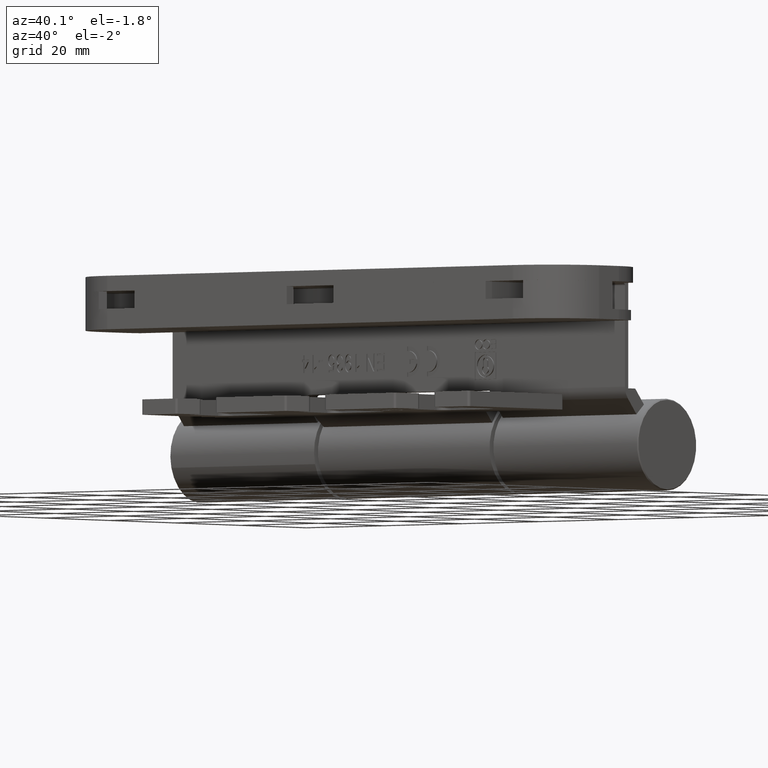
[diagram: clean part render]
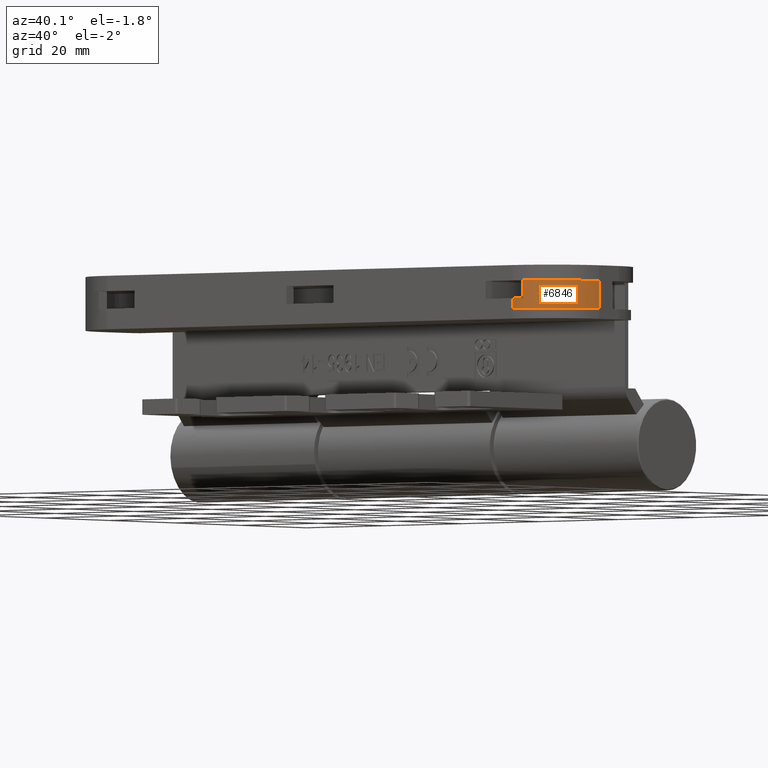
[diagram: same view with one face highlighted and labeled with its STEP entity id]
A machine part, auxiliary view. The second image highlights one B-rep face of the part: STEP entity #6846.
In plain terms, the highlighted cylindrical surface (partial cylindrical patch) has radius 12 mm, axis along (-0, -0, 1).
Its self-contained STEP definition (entity closure, byte-faithful):
#32 = CIRCLE ( 'NONE', #365, 12.00000000000001066 ) ;
#258 = DIRECTION ( 'NONE',  ( -4.930380657631317215E-32, 7.395570986446975823E-32, 1.000000000000000000 ) ) ;
#365 = AXIS2_PLACEMENT_3D ( 'NONE', #2494, #16246, #3815 ) ;
#514 = AXIS2_PLACEMENT_3D ( 'NONE', #4316, #8953, #4510 ) ;
#881 = VERTEX_POINT ( 'NONE', #9023 ) ;
#1675 = EDGE_CURVE ( 'NONE', #6336, #8606, #6639, .T. ) ;
#1861 = CARTESIAN_POINT ( 'NONE',  ( -16.00000000000002132, -52.00000000000001421, -1.999999999999998224 ) ) ;
#2039 = ORIENTED_EDGE ( 'NONE', *, *, #18697, .T. ) ;
#2071 = CARTESIAN_POINT ( 'NONE',  ( -3.999999999999996447, -64.00000000000000000, -1.999999999999998224 ) ) ;
#2494 = CARTESIAN_POINT ( 'NONE',  ( -3.999999999999996447, -52.00000000000000000, 3.500000000000010214 ) ) ;
#2877 = EDGE_CURVE ( 'NONE', #7013, #17102, #8682, .T. ) ;
#3181 = CYLINDRICAL_SURFACE ( 'NONE', #5067, 12.00000000000001243 ) ;
#3596 = ORIENTED_EDGE ( 'NONE', *, *, #4037, .T. ) ;
#3815 = DIRECTION ( 'NONE',  ( -1.000000000000000000, 0.000000000000000000, 0.000000000000000000 ) ) ;
#4037 = EDGE_CURVE ( 'NONE', #881, #7013, #4755, .T. ) ;
#4316 = CARTESIAN_POINT ( 'NONE',  ( -3.999999999999996447, -52.00000000000000711, 6.938893903907228378E-15 ) ) ;
#4469 = CARTESIAN_POINT ( 'NONE',  ( -16.00000000000000000, -52.00000000000001421, 0.000000000000000000 ) ) ;
#4510 = DIRECTION ( 'NONE',  ( -1.000000000000000000, 0.000000000000000000, -6.419766481290780338E-32 ) ) ;
#4673 = ORIENTED_EDGE ( 'NONE', *, *, #17531, .F. ) ;
#4705 = CARTESIAN_POINT ( 'NONE',  ( -3.999999999999996447, -52.00000000000000711, -1.999999999999991340 ) ) ;
#4755 = CIRCLE ( 'NONE', #10866, 12.00000000000001066 ) ;
#5067 = AXIS2_PLACEMENT_3D ( 'NONE', #4705, #9345, #14092 ) ;
#5363 = CARTESIAN_POINT ( 'NONE',  ( -3.999999999999996447, -64.00000000000000000, -1.999999999999998224 ) ) ;
#5851 = DIRECTION ( 'NONE',  ( -1.000000000000000000, 0.000000000000000000, 0.000000000000000000 ) ) ;
#6336 = VERTEX_POINT ( 'NONE', #4469 ) ;
#6639 = CIRCLE ( 'NONE', #514, 12.00000000000001066 ) ;
#6846 = ADVANCED_FACE ( 'NONE', ( #18538 ), #3181, .T. ) ;
#7013 = VERTEX_POINT ( 'NONE', #2071 ) ;
#7727 = VECTOR ( 'NONE', #258, 1000.000000000000000 ) ;
#8043 = CARTESIAN_POINT ( 'NONE',  ( -3.999999999999993339, -64.00000000000000000, 3.499999999999996003 ) ) ;
#8086 = ORIENTED_EDGE ( 'NONE', *, *, #9467, .F. ) ;
#8410 = CARTESIAN_POINT ( 'NONE',  ( -15.75755076535924282, -54.40000000000001279, 0.000000000000000000 ) ) ;
#8606 = VERTEX_POINT ( 'NONE', #8410 ) ;
#8682 = LINE ( 'NONE', #5363, #15703 ) ;
#8953 = DIRECTION ( 'NONE',  ( -4.930380657631317215E-32, 7.395570986446975823E-32, 1.000000000000000000 ) ) ;
#9023 = CARTESIAN_POINT ( 'NONE',  ( -16.00000000000002132, -52.00000000000001421, -1.999999999999998224 ) ) ;
#9345 = DIRECTION ( 'NONE',  ( -4.930380657631317215E-32, 7.395570986446975823E-32, 1.000000000000000000 ) ) ;
#9467 = EDGE_CURVE ( 'NONE', #18464, #17102, #32, .T. ) ;
#9530 = LINE ( 'NONE', #1861, #7727 ) ;
#10866 = AXIS2_PLACEMENT_3D ( 'NONE', #13822, #13617, #5851 ) ;
#11505 = DIRECTION ( 'NONE',  ( -4.930380657631317215E-32, 7.395570986446975823E-32, 1.000000000000000000 ) ) ;
#13617 = DIRECTION ( 'NONE',  ( -4.930380657631317215E-32, 7.395570986446975823E-32, 1.000000000000000000 ) ) ;
#13822 = CARTESIAN_POINT ( 'NONE',  ( -3.999999999999996447, -52.00000000000000711, -1.999999999999991340 ) ) ;
#14092 = DIRECTION ( 'NONE',  ( 1.000000000000000000, 0.000000000000000000, 0.000000000000000000 ) ) ;
#14188 = CARTESIAN_POINT ( 'NONE',  ( -15.75755076535924282, -54.40000000000000568, 3.500000000000003109 ) ) ;
#15703 = VECTOR ( 'NONE', #11505, 1000.000000000000000 ) ;
#16246 = DIRECTION ( 'NONE',  ( -4.930380657631317215E-32, 7.395570986446975823E-32, 1.000000000000000000 ) ) ;
#16934 = ORIENTED_EDGE ( 'NONE', *, *, #1675, .F. ) ;
#17102 = VERTEX_POINT ( 'NONE', #8043 ) ;
#17531 = EDGE_CURVE ( 'NONE', #881, #6336, #9530, .T. ) ;
#18002 = CARTESIAN_POINT ( 'NONE',  ( -15.75755076535924282, -54.40000000000000568, 3.500000000000003109 ) ) ;
#18126 = ORIENTED_EDGE ( 'NONE', *, *, #2877, .T. ) ;
#18464 = VERTEX_POINT ( 'NONE', #14188 ) ;
#18538 = FACE_OUTER_BOUND ( 'NONE', #19952, .T. ) ;
#18697 = EDGE_CURVE ( 'NONE', #18464, #8606, #19621, .T. ) ;
#19044 = VECTOR ( 'NONE', #19424, 1000.000000000000000 ) ;
#19424 = DIRECTION ( 'NONE',  ( 4.930380657631317215E-32, -7.395570986446975823E-32, -1.000000000000000000 ) ) ;
#19621 = LINE ( 'NONE', #18002, #19044 ) ;
#19952 = EDGE_LOOP ( 'NONE', ( #16934, #4673, #3596, #18126, #8086, #2039 ) ) ;